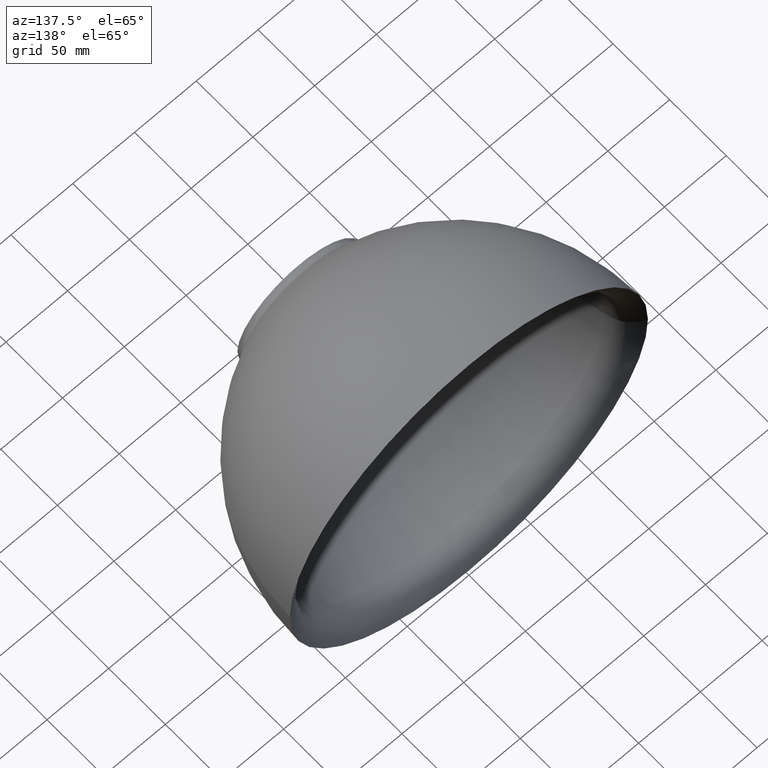
[diagram: clean part render]
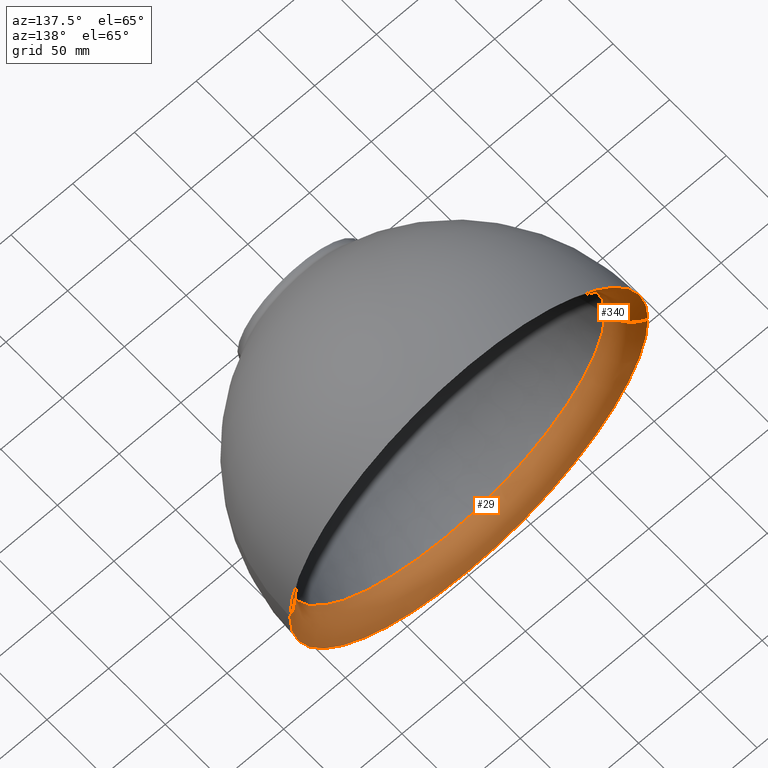
[diagram: same view with one multi-face feature highlighted, each face labeled with its STEP entity id]
A machine part, auxiliary view. The highlighted faces form ONE feature: a constant-radius fillet chain: 2 tangent blend faces with common blend radius 25.0783 mm. The faces share edges in the B-rep.
Their STEP definitions:
[1] entity #340 (Torus):
#8 = DIRECTION ( 'NONE',  ( -1.000000000000000000, -2.159332956423159800E-016, 0.0000000000000000000 ) ) ;
#15 = CARTESIAN_POINT ( 'NONE',  ( -128.5377298256254300, 129.9999999999999700, 0.0000000000000000000 ) ) ;
#18 = CIRCLE ( 'NONE', #93, 25.07832101446677700 ) ;
#19 = EDGE_CURVE ( 'NONE', #139, #449, #87, .T. ) ;
#26 = CARTESIAN_POINT ( 'NONE',  ( -2.694001388746044600E-015, 150.0000000000000000, 0.0000000000000000000 ) ) ;
#27 = EDGE_LOOP ( 'NONE', ( #204, #353, #210, #334 ) ) ;
#28 = EDGE_CURVE ( 'NONE', #122, #203, #45, .T. ) ;
#30 = DIRECTION ( 'NONE',  ( -1.104785946437366900E-016, 1.000000000000000000, -0.0000000000000000000 ) ) ;
#33 = DIRECTION ( 'NONE',  ( -1.000000000000000000, 0.0000000000000000000, 0.0000000000000000000 ) ) ;
#37 = DIRECTION ( 'NONE',  ( -1.104785946437366900E-016, 1.000000000000000000, -0.0000000000000000000 ) ) ;
#41 = FACE_OUTER_BOUND ( 'NONE', #27, .T. ) ;
#45 = CIRCLE ( 'NONE', #197, 128.5377298256254300 ) ;
#72 = DIRECTION ( 'NONE',  ( -1.000000000000000000, -1.104785946437366900E-016, 0.0000000000000000000 ) ) ;
#83 = AXIS2_PLACEMENT_3D ( 'NONE', #398, #267, #33 ) ;
#87 = CIRCLE ( 'NONE', #329, 145.0000000000000000 ) ;
#93 = AXIS2_PLACEMENT_3D ( 'NONE', #163, #161, #157 ) ;
#122 = VERTEX_POINT ( 'NONE', #15 ) ;
#139 = VERTEX_POINT ( 'NONE', #358 ) ;
#140 = CARTESIAN_POINT ( 'NONE',  ( 0.0000000000000000000, 126.3523706291405700, 0.0000000000000000000 ) ) ;
#157 = DIRECTION ( 'NONE',  ( 1.000000000000000000, 0.0000000000000000000, 1.224646799147352000E-016 ) ) ;
#161 = DIRECTION ( 'NONE',  ( -1.224646799147353200E-016, -1.352972573047500600E-032, 1.000000000000000000 ) ) ;
#163 = CARTESIAN_POINT ( 'NONE',  ( 153.3493598582832400, 126.3523706291405900, 1.877988027017421900E-014 ) ) ;
#184 = CARTESIAN_POINT ( 'NONE',  ( -4.844294958713144800E-016, 130.0000000000000000, 0.0000000000000000000 ) ) ;
#188 = DIRECTION ( 'NONE',  ( -1.000000000000000000, -1.914177628664062900E-016, 0.0000000000000000000 ) ) ;
#197 = AXIS2_PLACEMENT_3D ( 'NONE', #184, #37, #8 ) ;
#202 = EDGE_CURVE ( 'NONE', #139, #122, #336, .T. ) ;
#203 = VERTEX_POINT ( 'NONE', #419 ) ;
#204 = ORIENTED_EDGE ( 'NONE', *, *, #19, .T. ) ;
#210 = ORIENTED_EDGE ( 'NONE', *, *, #28, .F. ) ;
#215 = CARTESIAN_POINT ( 'NONE',  ( 145.0000000000000000, 150.0000000000000300, 1.775737858763661900E-014 ) ) ;
#225 = DIRECTION ( 'NONE',  ( -1.104785946437366900E-016, 1.000000000000000000, -0.0000000000000000000 ) ) ;
#267 = DIRECTION ( 'NONE',  ( 0.0000000000000000000, -0.0000000000000000000, -1.000000000000000000 ) ) ;
#294 = TOROIDAL_SURFACE ( 'NONE', #351, 153.3493598582832400, 25.07832101446676300 ) ;
#319 = EDGE_CURVE ( 'NONE', #449, #203, #18, .T. ) ;
#329 = AXIS2_PLACEMENT_3D ( 'NONE', #26, #30, #188 ) ;
#334 = ORIENTED_EDGE ( 'NONE', *, *, #202, .F. ) ;
#336 = CIRCLE ( 'NONE', #83, 25.07832101446677700 ) ;
#340 = ADVANCED_FACE ( 'NONE', ( #41 ), #294, .T. ) ;
#351 = AXIS2_PLACEMENT_3D ( 'NONE', #140, #225, #72 ) ;
#353 = ORIENTED_EDGE ( 'NONE', *, *, #319, .T. ) ;
#358 = CARTESIAN_POINT ( 'NONE',  ( -145.0000000000000000, 149.9999999999999700, 0.0000000000000000000 ) ) ;
#398 = CARTESIAN_POINT ( 'NONE',  ( -153.3493598582832400, 126.3523706291405400, 0.0000000000000000000 ) ) ;
#419 = CARTESIAN_POINT ( 'NONE',  ( 128.5377298256254300, 130.0000000000000000, 1.574133194006194900E-014 ) ) ;
#449 = VERTEX_POINT ( 'NONE', #215 ) ;
[2] entity #29 (Torus):
#3 = CARTESIAN_POINT ( 'NONE',  ( 0.0000000000000000000, 126.3523706291405700, 0.0000000000000000000 ) ) ;
#5 = CIRCLE ( 'NONE', #396, 128.5377298256254300 ) ;
#15 = CARTESIAN_POINT ( 'NONE',  ( -128.5377298256254300, 129.9999999999999700, 0.0000000000000000000 ) ) ;
#18 = CIRCLE ( 'NONE', #93, 25.07832101446677700 ) ;
#20 = ORIENTED_EDGE ( 'NONE', *, *, #257, .F. ) ;
#29 = ADVANCED_FACE ( 'NONE', ( #217 ), #306, .T. ) ;
#33 = DIRECTION ( 'NONE',  ( -1.000000000000000000, 0.0000000000000000000, 0.0000000000000000000 ) ) ;
#38 = DIRECTION ( 'NONE',  ( -1.104785946437366900E-016, 1.000000000000000000, -0.0000000000000000000 ) ) ;
#57 = AXIS2_PLACEMENT_3D ( 'NONE', #390, #407, #383 ) ;
#61 = DIRECTION ( 'NONE',  ( -1.104785946437366900E-016, 1.000000000000000000, -0.0000000000000000000 ) ) ;
#83 = AXIS2_PLACEMENT_3D ( 'NONE', #398, #267, #33 ) ;
#93 = AXIS2_PLACEMENT_3D ( 'NONE', #163, #161, #157 ) ;
#99 = AXIS2_PLACEMENT_3D ( 'NONE', #3, #61, #148 ) ;
#122 = VERTEX_POINT ( 'NONE', #15 ) ;
#125 = CARTESIAN_POINT ( 'NONE',  ( -4.844294958713144800E-016, 130.0000000000000000, 0.0000000000000000000 ) ) ;
#139 = VERTEX_POINT ( 'NONE', #358 ) ;
#148 = DIRECTION ( 'NONE',  ( -1.000000000000000000, -1.104785946437366900E-016, 0.0000000000000000000 ) ) ;
#157 = DIRECTION ( 'NONE',  ( 1.000000000000000000, 0.0000000000000000000, 1.224646799147352000E-016 ) ) ;
#159 = CIRCLE ( 'NONE', #57, 145.0000000000000000 ) ;
#161 = DIRECTION ( 'NONE',  ( -1.224646799147353200E-016, -1.352972573047500600E-032, 1.000000000000000000 ) ) ;
#163 = CARTESIAN_POINT ( 'NONE',  ( 153.3493598582832400, 126.3523706291405900, 1.877988027017421900E-014 ) ) ;
#167 = ORIENTED_EDGE ( 'NONE', *, *, #319, .F. ) ;
#173 = ORIENTED_EDGE ( 'NONE', *, *, #202, .T. ) ;
#202 = EDGE_CURVE ( 'NONE', #139, #122, #336, .T. ) ;
#203 = VERTEX_POINT ( 'NONE', #419 ) ;
#215 = CARTESIAN_POINT ( 'NONE',  ( 145.0000000000000000, 150.0000000000000300, 1.775737858763661900E-014 ) ) ;
#217 = FACE_OUTER_BOUND ( 'NONE', #283, .T. ) ;
#218 = ORIENTED_EDGE ( 'NONE', *, *, #437, .T. ) ;
#228 = DIRECTION ( 'NONE',  ( -1.000000000000000000, -2.159332956423159800E-016, 0.0000000000000000000 ) ) ;
#257 = EDGE_CURVE ( 'NONE', #203, #122, #5, .T. ) ;
#267 = DIRECTION ( 'NONE',  ( 0.0000000000000000000, -0.0000000000000000000, -1.000000000000000000 ) ) ;
#283 = EDGE_LOOP ( 'NONE', ( #167, #218, #173, #20 ) ) ;
#306 = TOROIDAL_SURFACE ( 'NONE', #99, 153.3493598582832400, 25.07832101446676300 ) ;
#319 = EDGE_CURVE ( 'NONE', #449, #203, #18, .T. ) ;
#336 = CIRCLE ( 'NONE', #83, 25.07832101446677700 ) ;
#358 = CARTESIAN_POINT ( 'NONE',  ( -145.0000000000000000, 149.9999999999999700, 0.0000000000000000000 ) ) ;
#383 = DIRECTION ( 'NONE',  ( -1.000000000000000000, -1.914177628664062900E-016, 0.0000000000000000000 ) ) ;
#390 = CARTESIAN_POINT ( 'NONE',  ( -2.694001388746044600E-015, 150.0000000000000000, 0.0000000000000000000 ) ) ;
#396 = AXIS2_PLACEMENT_3D ( 'NONE', #125, #38, #228 ) ;
#398 = CARTESIAN_POINT ( 'NONE',  ( -153.3493598582832400, 126.3523706291405400, 0.0000000000000000000 ) ) ;
#407 = DIRECTION ( 'NONE',  ( -1.104785946437366900E-016, 1.000000000000000000, -0.0000000000000000000 ) ) ;
#419 = CARTESIAN_POINT ( 'NONE',  ( 128.5377298256254300, 130.0000000000000000, 1.574133194006194900E-014 ) ) ;
#437 = EDGE_CURVE ( 'NONE', #449, #139, #159, .T. ) ;
#449 = VERTEX_POINT ( 'NONE', #215 ) ;